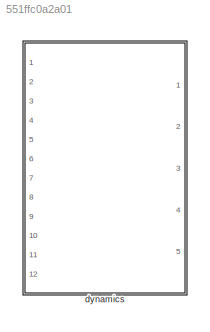
MODEL slx_551ffc0a2a01
KIND model
CONFIG AbsTol = auto
CONFIG EnableMultiTasking = off
CONFIG FixedStep = auto
CONFIG MaxStep = auto
CONFIG MinStep = auto
CONFIG RelTol = 1e-3
CONFIG SampleTimeConstraint = Unconstrained
CONFIG Solver = VariableStepAuto
CONFIG SolverName = VariableStepAuto
CONFIG StartTime = 0.0
CONFIG StopTime = 10.0
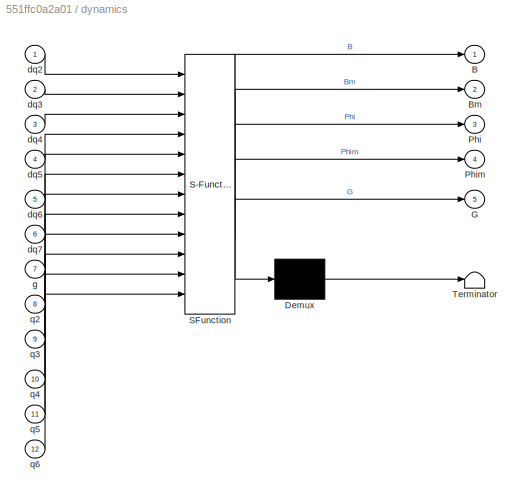
BLOCK [SubSystem] dynamics
  ErrorFcn = Stateflow.Translate.translate
  PermitHierarchicalResolution = ExplicitOnly
  Ports = [12, 5]
  RequestExecContextInheritance = off
  SFBlockType = MATLAB Function
  TreatAsAtomicUnit = on
BLOCK [Demux] dynamics/ Demux 
  Outputs = 1
  Ports = [1, 1]
BLOCK [S-Function] dynamics/ SFunction 
  EnableBusSupport = off
  FunctionName = sf_sfun
  PortCounts = [12 6]
  Ports = [12, 6]
  SFcnIsStateOwnerBlock = off
  SFunctionDeploymentMode = off
  Tag = Stateflow S-Function KR6_dyn_lib11 2
BLOCK [Terminator] dynamics/ Terminator 
BLOCK [Outport] dynamics/B
  IconDisplay = Port number
BLOCK [Outport] dynamics/Bm
  IconDisplay = Port number
  Port = 2
BLOCK [Outport] dynamics/G
  IconDisplay = Port number
  Port = 5
BLOCK [Outport] dynamics/Phi
  IconDisplay = Port number
  Port = 3
BLOCK [Outport] dynamics/Phim
  IconDisplay = Port number
  Port = 4
BLOCK [Inport] dynamics/dq2
  IconDisplay = Port number
BLOCK [Inport] dynamics/dq3
  IconDisplay = Port number
  Port = 2
BLOCK [Inport] dynamics/dq4
  IconDisplay = Port number
  Port = 3
BLOCK [Inport] dynamics/dq5
  IconDisplay = Port number
  Port = 4
BLOCK [Inport] dynamics/dq6
  IconDisplay = Port number
  Port = 5
BLOCK [Inport] dynamics/dq7
  IconDisplay = Port number
  Port = 6
BLOCK [Inport] dynamics/g
  IconDisplay = Port number
  Port = 7
BLOCK [Inport] dynamics/q2
  IconDisplay = Port number
  Port = 8
BLOCK [Inport] dynamics/q3
  IconDisplay = Port number
  Port = 9
BLOCK [Inport] dynamics/q4
  IconDisplay = Port number
  Port = 10
BLOCK [Inport] dynamics/q5
  IconDisplay = Port number
  Port = 11
BLOCK [Inport] dynamics/q6
  IconDisplay = Port number
  Port = 12
CHART dynamics states=1 transitions=1
  STATE_LABEL 'eML_blk_kernel()'
  STATE_LABEL 'SCRIPT:\nfunction [B,Bm,Phi,Phim,G] = dynamics(dq2,dq3,dq4,dq5,dq6,dq7,g,q2,q3,q4,q5,q6)\n%#codegen\n\n%    This function was generated by the Symbolic Math Toolbox version 8.1.\n%    27-May-2020 20:53:49\n\nt2 = cos(q2);\nt3 = sin(q2);\nt4 = sin(q5);\nt5 = cos(q3);\nt6 = cos(q4);\nt7 = sin(q3);\nt8 = sin(q4);\nt9 = cos(q5);\nt10 = cos(q6);\nt11 = sin(q6);\nt12 = t7.*t8.*1.4164748e7;\nt13 = t4.*t5.*t8.*1.79145e5;\nt...<+3608ch>'
